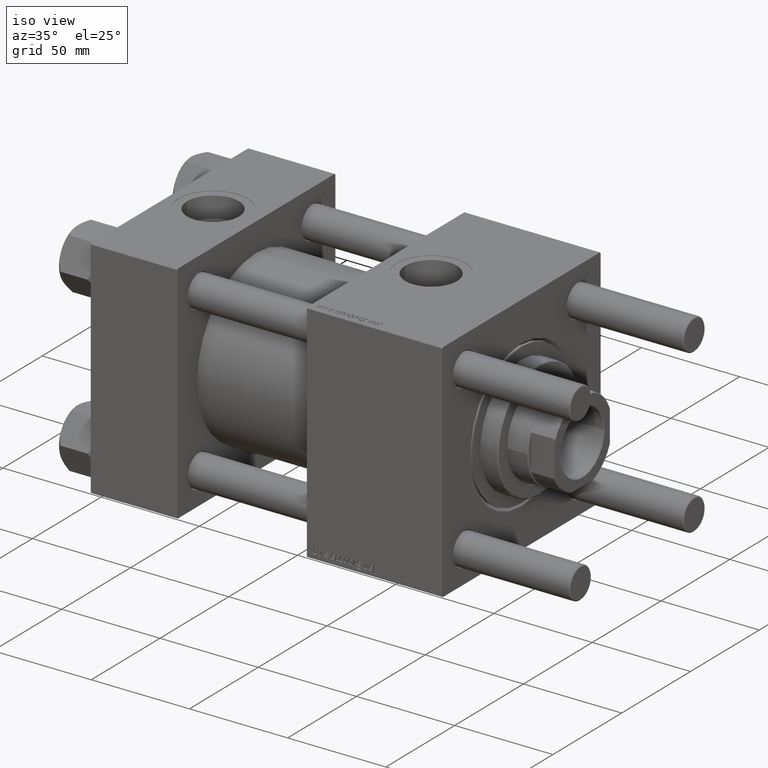
[diagram: clean part render]
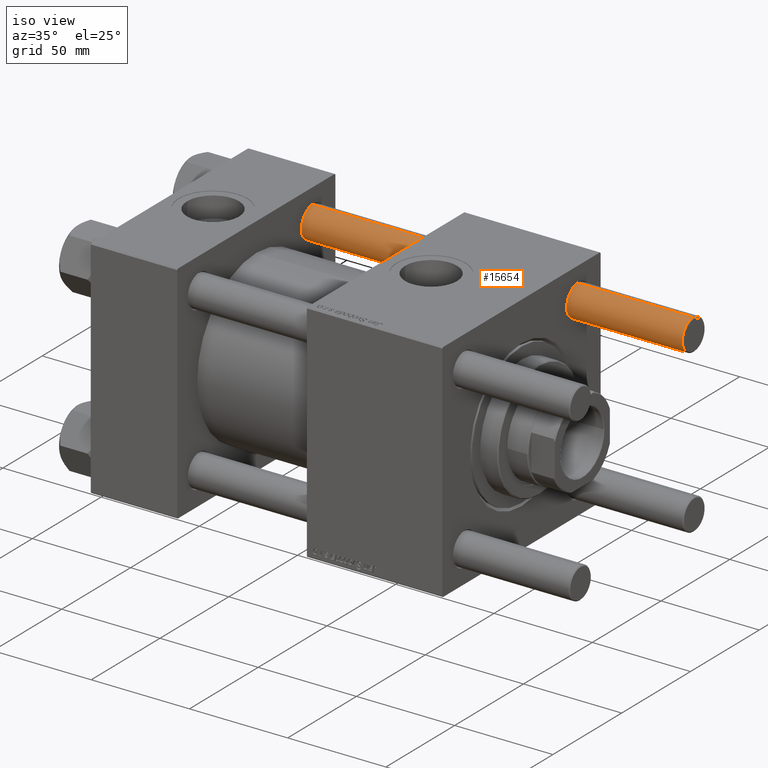
[diagram: same view with one face highlighted and labeled with its STEP entity id]
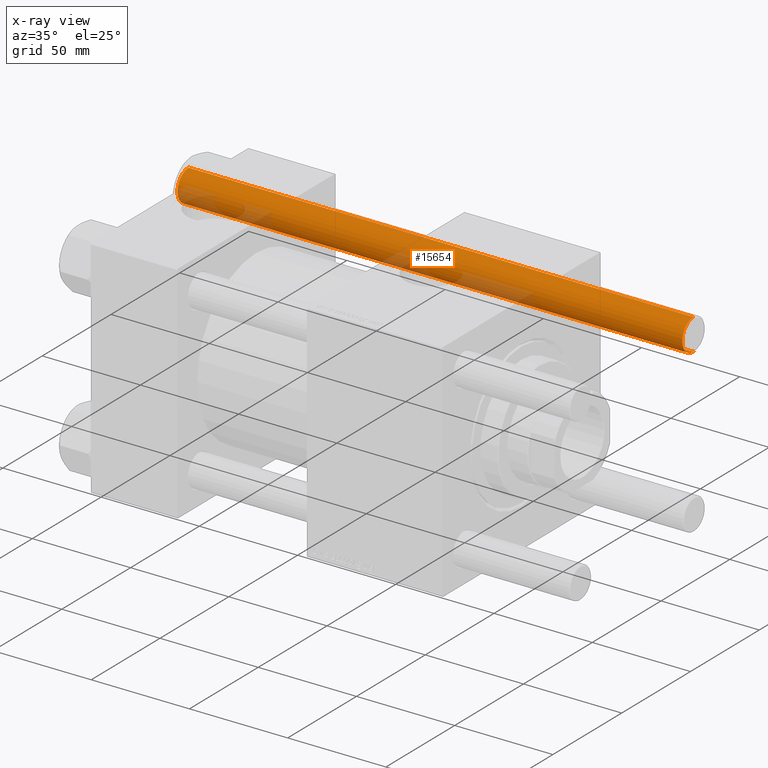
[diagram: x-ray of the same camera — body ghosted, the highlighted face saturated]
A machine part, iso view. The second image highlights one B-rep face of the part: STEP entity #15654.
The next image is the same camera in x-ray: the body ghosted, the highlighted face saturated — about 16% of this face is hidden behind the body in this view.
In plain terms, the highlighted cylindrical surface (edge-blend (fillet) strip) has radius 8 mm, axis along (1, -0, -0).
Its self-contained STEP definition (entity closure, byte-faithful):
#260 = CIRCLE ( 'NONE', #2126, 8.000000000000000000 ) ;
#1175 = CIRCLE ( 'NONE', #6697, 8.000000000000000000 ) ;
#2126 = AXIS2_PLACEMENT_3D ( 'NONE', #35739, #24977, #54765 ) ;
#2190 = EDGE_CURVE ( 'NONE', #48835, #21043, #39642, .T. ) ;
#3155 = CARTESIAN_POINT ( 'NONE',  ( -8.000000000000000000, 0.000000000000000000, 257.4999999999999432 ) ) ;
#6242 = ORIENTED_EDGE ( 'NONE', *, *, #33730, .F. ) ;
#6667 = VECTOR ( 'NONE', #26555, 1000.000000000000000 ) ;
#6697 = AXIS2_PLACEMENT_3D ( 'NONE', #8547, #49276, #27608 ) ;
#7310 = CARTESIAN_POINT ( 'NONE',  ( -8.000000000000000000, 0.000000000000000000, 0.4999999999999449329 ) ) ;
#8547 = CARTESIAN_POINT ( 'NONE',  ( 0.000000000000000000, 0.000000000000000000, 0.4999999999999449329 ) ) ;
#8725 = CARTESIAN_POINT ( 'NONE',  ( -8.000000000000000000, 0.000000000000000000, 258.0000000000000000 ) ) ;
#9946 = EDGE_LOOP ( 'NONE', ( #6242, #17215, #24746, #15445 ) ) ;
#11233 = EDGE_CURVE ( 'NONE', #21043, #55940, #1175, .T. ) ;
#13172 = CYLINDRICAL_SURFACE ( 'NONE', #56661, 8.000000000000000000 ) ;
#13461 = DIRECTION ( 'NONE',  ( -1.000000000000000000, 0.000000000000000000, 0.000000000000000000 ) ) ;
#13546 = LINE ( 'NONE', #44182, #6667 ) ;
#14158 = VERTEX_POINT ( 'NONE', #38557 ) ;
#15445 = ORIENTED_EDGE ( 'NONE', *, *, #11233, .T. ) ;
#15654 = ADVANCED_FACE ( 'NONE', ( #57087 ), #13172, .T. ) ;
#15839 = VECTOR ( 'NONE', #39369, 1000.000000000000000 ) ;
#17215 = ORIENTED_EDGE ( 'NONE', *, *, #36063, .T. ) ;
#21043 = VERTEX_POINT ( 'NONE', #7310 ) ;
#24746 = ORIENTED_EDGE ( 'NONE', *, *, #2190, .T. ) ;
#24977 = DIRECTION ( 'NONE',  ( 0.000000000000000000, 0.000000000000000000, -1.000000000000000000 ) ) ;
#26555 = DIRECTION ( 'NONE',  ( -0.000000000000000000, -0.000000000000000000, -1.000000000000000000 ) ) ;
#27608 = DIRECTION ( 'NONE',  ( 1.000000000000000000, 0.000000000000000000, 0.000000000000000000 ) ) ;
#30530 = CARTESIAN_POINT ( 'NONE',  ( 0.000000000000000000, 0.000000000000000000, 258.0000000000000000 ) ) ;
#32713 = CARTESIAN_POINT ( 'NONE',  ( 8.000000000000000000, 9.797174393178825657E-16, 0.4999999999999449329 ) ) ;
#33730 = EDGE_CURVE ( 'NONE', #14158, #55940, #13546, .T. ) ;
#35739 = CARTESIAN_POINT ( 'NONE',  ( 0.000000000000000000, 0.000000000000000000, 257.4999999999999432 ) ) ;
#36063 = EDGE_CURVE ( 'NONE', #14158, #48835, #260, .T. ) ;
#38557 = CARTESIAN_POINT ( 'NONE',  ( 8.000000000000000000, 9.797174393178825657E-16, 257.4999999999999432 ) ) ;
#39369 = DIRECTION ( 'NONE',  ( -0.000000000000000000, -0.000000000000000000, -1.000000000000000000 ) ) ;
#39642 = LINE ( 'NONE', #8725, #15839 ) ;
#44182 = CARTESIAN_POINT ( 'NONE',  ( 8.000000000000000000, 9.797174393178825657E-16, 258.0000000000000000 ) ) ;
#48835 = VERTEX_POINT ( 'NONE', #3155 ) ;
#48982 = DIRECTION ( 'NONE',  ( -0.000000000000000000, -0.000000000000000000, -1.000000000000000000 ) ) ;
#49276 = DIRECTION ( 'NONE',  ( -0.000000000000000000, -0.000000000000000000, 1.000000000000000000 ) ) ;
#54765 = DIRECTION ( 'NONE',  ( 1.000000000000000000, 0.000000000000000000, 0.000000000000000000 ) ) ;
#55940 = VERTEX_POINT ( 'NONE', #32713 ) ;
#56661 = AXIS2_PLACEMENT_3D ( 'NONE', #30530, #48982, #13461 ) ;
#57087 = FACE_OUTER_BOUND ( 'NONE', #9946, .T. ) ;